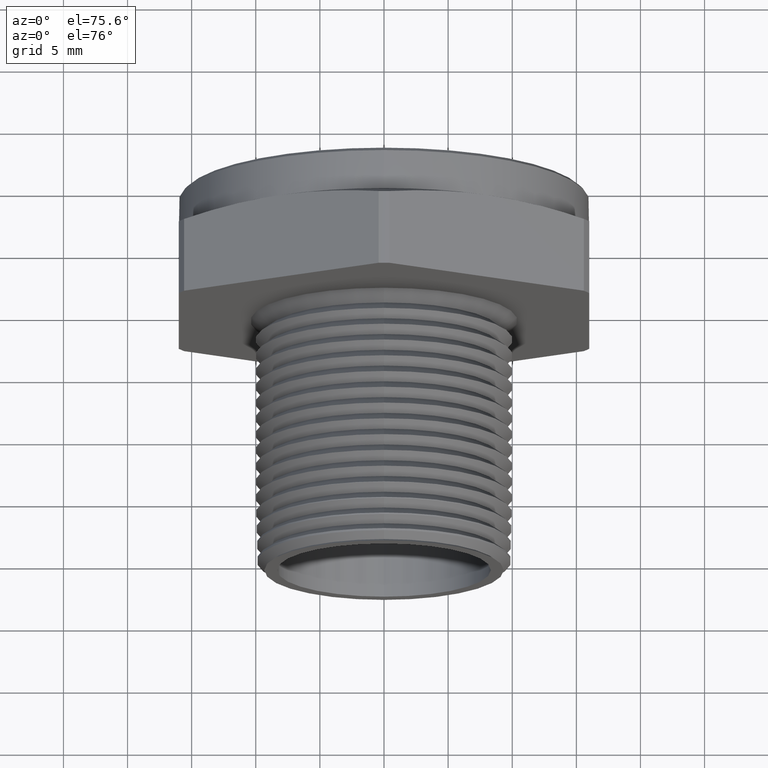
[diagram: clean part render]
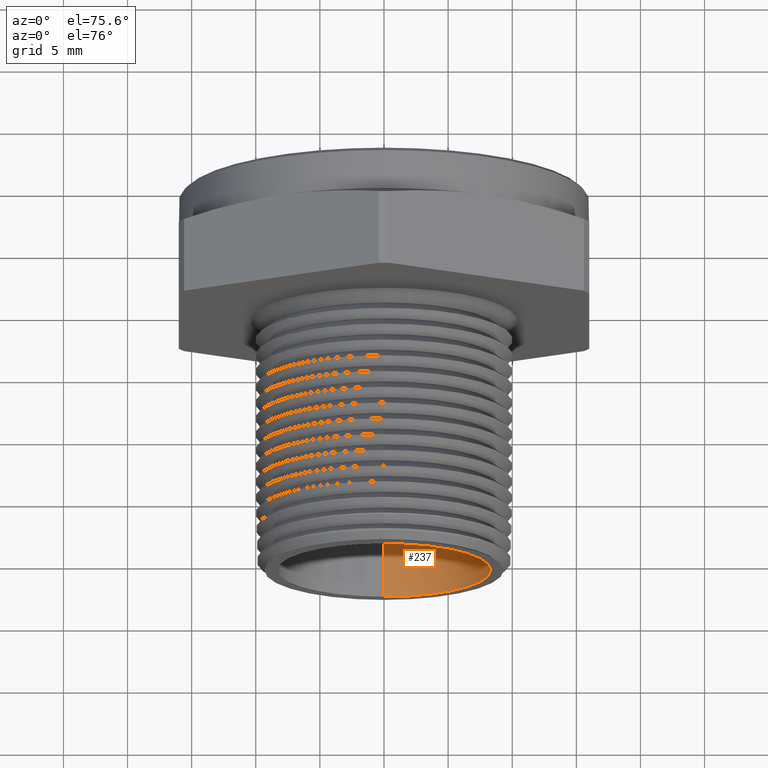
[diagram: same view with one face highlighted and labeled with its STEP entity id]
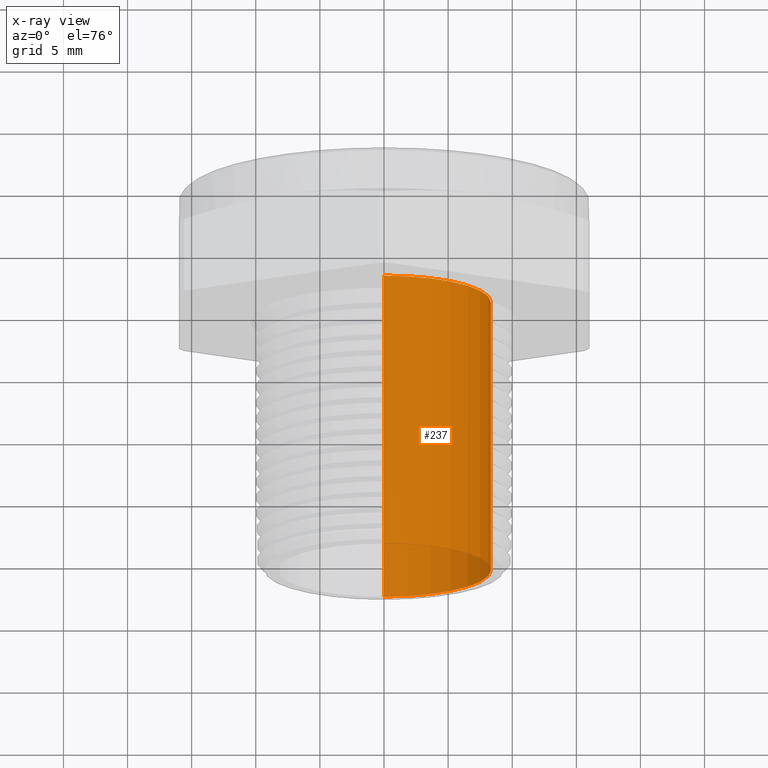
[diagram: x-ray of the same camera — body ghosted, the highlighted face saturated]
A machine part, auxiliary view. The second image highlights one B-rep face of the part: STEP entity #237.
The next image is the same camera in x-ray: the body ghosted, the highlighted face saturated — about 0% of this face is hidden behind the body in this view.
In plain terms, the highlighted cylindrical surface (partial cylindrical patch) has radius 8.3312 mm, axis along (-0, -1, -0).
Its self-contained STEP definition (entity closure, byte-faithful):
#219 = ORIENTED_EDGE ( 'NONE', *, *, #3317, .T. ) ;
#237 = ADVANCED_FACE ( 'NONE', ( #1463 ), #1462, .F. ) ;
#238 = EDGE_LOOP ( 'NONE', ( #239, #240, #242, #219 ) ) ;
#239 = ORIENTED_EDGE ( 'NONE', *, *, #546, .F. ) ;
#240 = ORIENTED_EDGE ( 'NONE', *, *, #241, .F. ) ;
#241 = EDGE_CURVE ( 'NONE', #485, #484, #1461, .T. ) ;
#242 = ORIENTED_EDGE ( 'NONE', *, *, #478, .T. ) ;
#478 = EDGE_CURVE ( 'NONE', #485, #547, #1738, .T. ) ;
#480 = VERTEX_POINT ( 'NONE', #1734 ) ;
#484 = VERTEX_POINT ( 'NONE', #1794 ) ;
#485 = VERTEX_POINT ( 'NONE', #1789 ) ;
#546 = EDGE_CURVE ( 'NONE', #484, #480, #1920, .T. ) ;
#547 = VERTEX_POINT ( 'NONE', #1916 ) ;
#1452 = DIRECTION ( 'NONE',  ( 0.0000000000000000000, 0.0000000000000000000, -1.000000000000000000 ) ) ;
#1453 = DIRECTION ( 'NONE',  ( -0.0000000000000000000, -1.000000000000000000, -0.0000000000000000000 ) ) ;
#1454 = CARTESIAN_POINT ( 'NONE',  ( 0.0000000000000000000, 0.8489999999999999800, 0.0000000000000000000 ) ) ;
#1455 = AXIS2_PLACEMENT_3D ( 'NONE', #1454, #1453, #1452 ) ;
#1457 = DIRECTION ( 'NONE',  ( 0.0000000000000000000, 0.0000000000000000000, -1.000000000000000000 ) ) ;
#1458 = DIRECTION ( 'NONE',  ( -0.0000000000000000000, -1.000000000000000000, -0.0000000000000000000 ) ) ;
#1459 = CARTESIAN_POINT ( 'NONE',  ( 0.0000000000000000000, 0.0000000000000000000, 0.0000000000000000000 ) ) ;
#1460 = AXIS2_PLACEMENT_3D ( 'NONE', #1459, #1458, #1457 ) ;
#1461 = CIRCLE ( 'NONE', #1455, 0.3279999999999999000 ) ;
#1462 = CYLINDRICAL_SURFACE ( 'NONE', #1460, 0.3279999999999999600 ) ;
#1463 = FACE_OUTER_BOUND ( 'NONE', #238, .T. ) ;
#1734 = CARTESIAN_POINT ( 'NONE',  ( 4.016841501203318300E-017, 0.0000000000000000000, 0.3280000000000000100 ) ) ;
#1735 = DIRECTION ( 'NONE',  ( -0.0000000000000000000, -1.000000000000000000, -0.0000000000000000000 ) ) ;
#1736 = VECTOR ( 'NONE', #1735, 39.37007874015748100 ) ;
#1737 = CARTESIAN_POINT ( 'NONE',  ( 0.0000000000000000000, 0.0000000000000000000, -0.3279999999999999600 ) ) ;
#1738 = LINE ( 'NONE', #1737, #1736 ) ;
#1789 = CARTESIAN_POINT ( 'NONE',  ( 0.0000000000000000000, 0.8489999999999999800, -0.3279999999999999000 ) ) ;
#1794 = CARTESIAN_POINT ( 'NONE',  ( 4.016841501203317600E-017, 0.8489999999999999800, 0.3279999999999999000 ) ) ;
#1916 = CARTESIAN_POINT ( 'NONE',  ( 0.0000000000000000000, 0.0000000000000000000, -0.3280000000000000100 ) ) ;
#1917 = DIRECTION ( 'NONE',  ( -0.0000000000000000000, -1.000000000000000000, -0.0000000000000000000 ) ) ;
#1918 = VECTOR ( 'NONE', #1917, 39.37007874015748100 ) ;
#1919 = CARTESIAN_POINT ( 'NONE',  ( 4.016841501203317600E-017, 0.0000000000000000000, 0.3279999999999999600 ) ) ;
#1920 = LINE ( 'NONE', #1919, #1918 ) ;
#3015 = DIRECTION ( 'NONE',  ( 0.0000000000000000000, 0.0000000000000000000, -1.000000000000000000 ) ) ;
#3016 = DIRECTION ( 'NONE',  ( -0.0000000000000000000, -1.000000000000000000, -0.0000000000000000000 ) ) ;
#3017 = CARTESIAN_POINT ( 'NONE',  ( 0.0000000000000000000, 0.0000000000000000000, 0.0000000000000000000 ) ) ;
#3018 = AXIS2_PLACEMENT_3D ( 'NONE', #3017, #3016, #3015 ) ;
#3019 = CIRCLE ( 'NONE', #3018, 0.3280000000000000100 ) ;
#3317 = EDGE_CURVE ( 'NONE', #547, #480, #3019, .T. ) ;